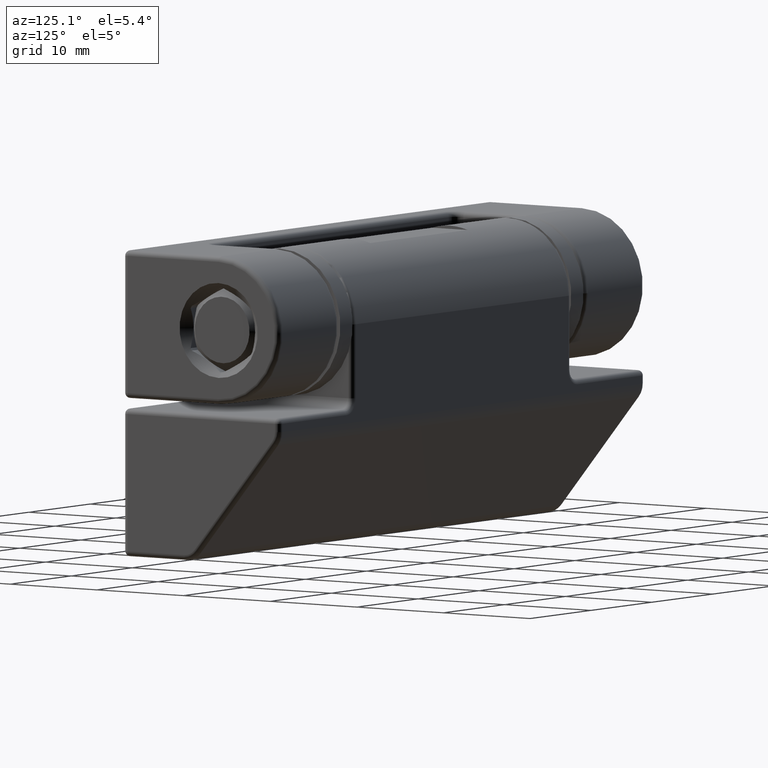
[diagram: clean part render]
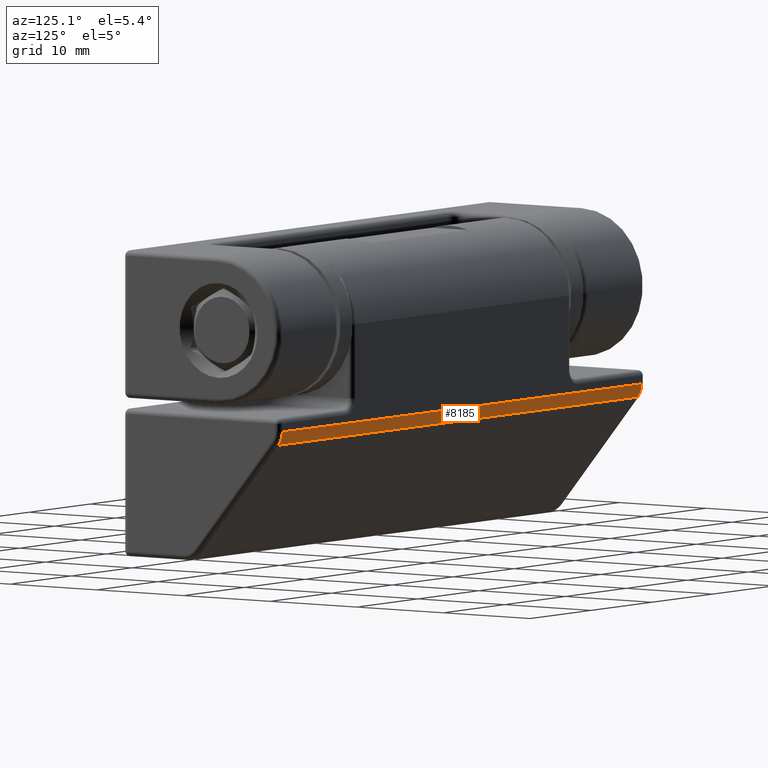
[diagram: same view with one face highlighted and labeled with its STEP entity id]
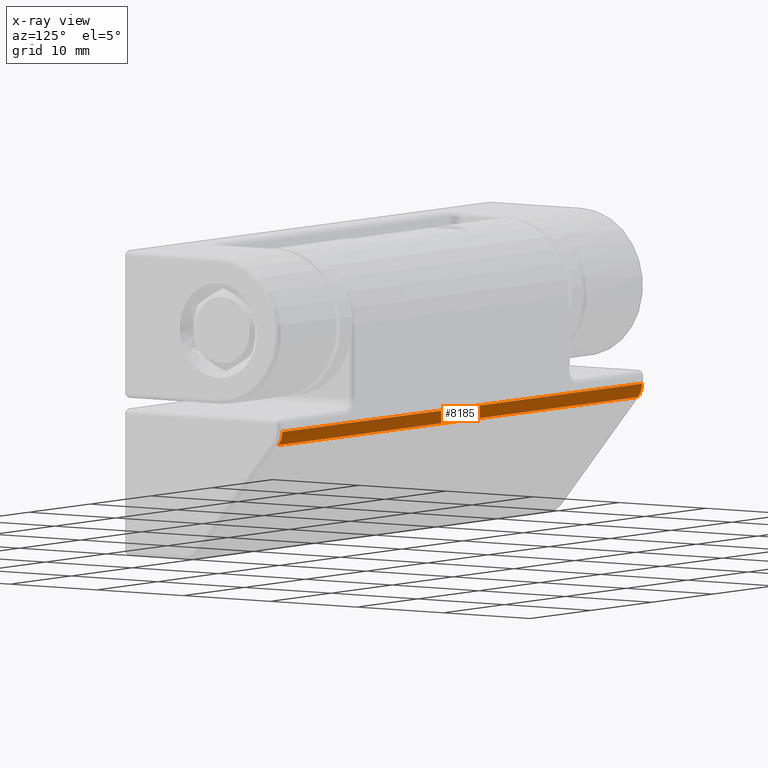
[diagram: x-ray of the same camera — body ghosted, the highlighted face saturated]
A machine part, auxiliary view. The second image highlights one B-rep face of the part: STEP entity #8185.
The next image is the same camera in x-ray: the body ghosted, the highlighted face saturated — about 0% of this face is hidden behind the body in this view.
In plain terms, the highlighted cylindrical surface (edge-blend (fillet) strip) has radius 2 mm, axis along (-1, 0, 0).
Its self-contained STEP definition (entity closure, byte-faithful):
#2134 = DIRECTION ( 'NONE',  ( 0.0000000000000000000, 0.0000000000000000000, 1.000000000000000000 ) ) ;
#3327 = ORIENTED_EDGE ( 'NONE', *, *, #9196, .T. ) ;
#4326 = VECTOR ( 'NONE', #21761, 1000.000000000000000 ) ;
#6446 = EDGE_CURVE ( 'NONE', #9974, #15379, #27861, .T. ) ;
#6504 = CARTESIAN_POINT ( 'NONE',  ( 970.0000000000000000, 6.999999999999920100, -9.275900129641740900 ) ) ;
#7023 = EDGE_CURVE ( 'NONE', #12218, #15379, #15928, .T. ) ;
#8065 = FACE_OUTER_BOUND ( 'NONE', #15786, .T. ) ;
#8185 = ADVANCED_FACE ( 'NONE', ( #8065 ), #24746, .T. ) ;
#8592 = LINE ( 'NONE', #26291, #13046 ) ;
#9098 = CARTESIAN_POINT ( 'NONE',  ( -29.50000000000000000, 6.536442559194670200, -10.55626892897069900 ) ) ;
#9196 = EDGE_CURVE ( 'NONE', #12218, #14530, #14531, .T. ) ;
#9974 = VERTEX_POINT ( 'NONE', #9098 ) ;
#11234 = CARTESIAN_POINT ( 'NONE',  ( 29.50000000000000000, 4.999999999999920100, -9.275900129641740900 ) ) ;
#11277 = ORIENTED_EDGE ( 'NONE', *, *, #6446, .T. ) ;
#11638 = ORIENTED_EDGE ( 'NONE', *, *, #13413, .F. ) ;
#11861 = DIRECTION ( 'NONE',  ( 1.000000000000000000, -0.0000000000000000000, -0.0000000000000000000 ) ) ;
#12218 = VERTEX_POINT ( 'NONE', #20392 ) ;
#13004 = CARTESIAN_POINT ( 'NONE',  ( 970.0000000000000000, 4.999999999999920100, -9.275900129641740900 ) ) ;
#13046 = VECTOR ( 'NONE', #13273, 1000.000000000000000 ) ;
#13273 = DIRECTION ( 'NONE',  ( 1.000000000000000000, -0.0000000000000000000, -0.0000000000000000000 ) ) ;
#13413 = EDGE_CURVE ( 'NONE', #9974, #14530, #8592, .T. ) ;
#13432 = DIRECTION ( 'NONE',  ( 0.0000000000000000000, 0.0000000000000000000, 1.000000000000000000 ) ) ;
#14530 = VERTEX_POINT ( 'NONE', #23335 ) ;
#14531 = CIRCLE ( 'NONE', #27949, 2.000000000000000000 ) ;
#15379 = VERTEX_POINT ( 'NONE', #16836 ) ;
#15786 = EDGE_LOOP ( 'NONE', ( #11638, #11277, #20731, #3327 ) ) ;
#15928 = LINE ( 'NONE', #6504, #4326 ) ;
#16836 = CARTESIAN_POINT ( 'NONE',  ( -29.50000000000000000, 6.999999999999920100, -9.275900129641740900 ) ) ;
#20392 = CARTESIAN_POINT ( 'NONE',  ( 29.50000000000000000, 6.999999999999920100, -9.275900129641740900 ) ) ;
#20731 = ORIENTED_EDGE ( 'NONE', *, *, #7023, .F. ) ;
#21751 = AXIS2_PLACEMENT_3D ( 'NONE', #13004, #28215, #2134 ) ;
#21761 = DIRECTION ( 'NONE',  ( -1.000000000000000000, 0.0000000000000000000, 0.0000000000000000000 ) ) ;
#23335 = CARTESIAN_POINT ( 'NONE',  ( 29.50000000000000000, 6.536442559194670200, -10.55626892897069900 ) ) ;
#24746 = CYLINDRICAL_SURFACE ( 'NONE', #21751, 2.000000000000000000 ) ;
#24907 = CARTESIAN_POINT ( 'NONE',  ( -29.50000000000000000, 4.999999999999920100, -9.275900129641740900 ) ) ;
#26291 = CARTESIAN_POINT ( 'NONE',  ( 970.0000000000000000, 6.536442559194670200, -10.55626892897069900 ) ) ;
#26450 = DIRECTION ( 'NONE',  ( -1.000000000000000000, 0.0000000000000000000, 0.0000000000000000000 ) ) ;
#26801 = AXIS2_PLACEMENT_3D ( 'NONE', #24907, #11861, #27076 ) ;
#27076 = DIRECTION ( 'NONE',  ( 0.0000000000000000000, 0.0000000000000000000, 1.000000000000000000 ) ) ;
#27861 = CIRCLE ( 'NONE', #26801, 2.000000000000000000 ) ;
#27949 = AXIS2_PLACEMENT_3D ( 'NONE', #11234, #26450, #13432 ) ;
#28215 = DIRECTION ( 'NONE',  ( -1.000000000000000000, 0.0000000000000000000, 0.0000000000000000000 ) ) ;